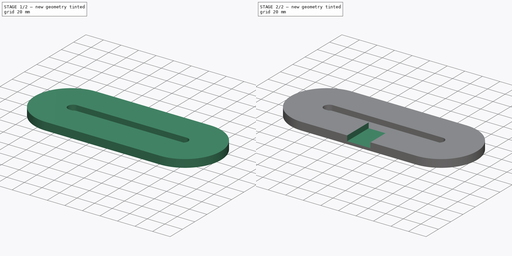
[diagram: build sequence overview — one tinted view per stage of 2, left to right]
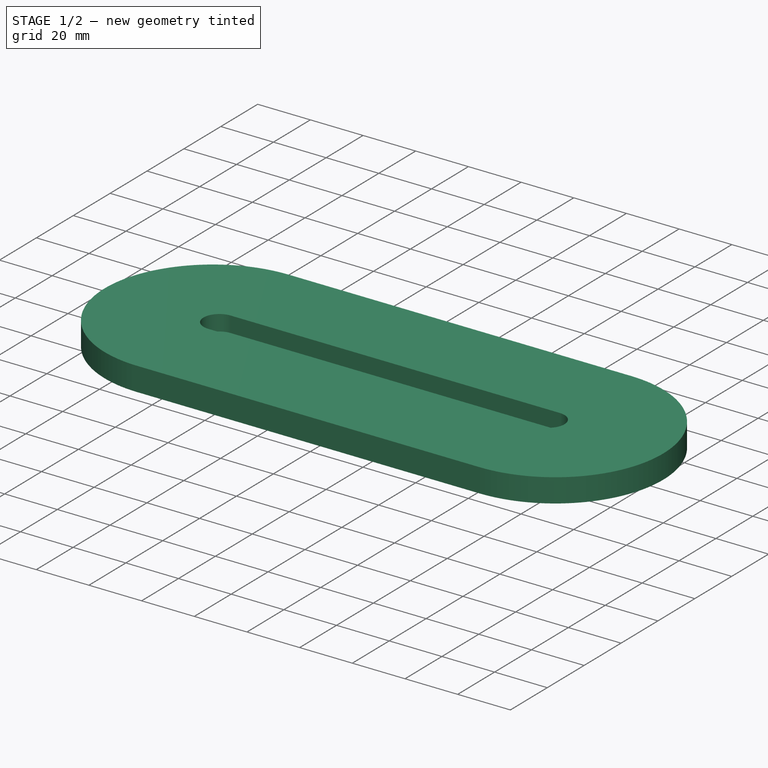
[diagram: stage 1 of 2 — iso view after this stage's code; geometry added in this stage tinted green]
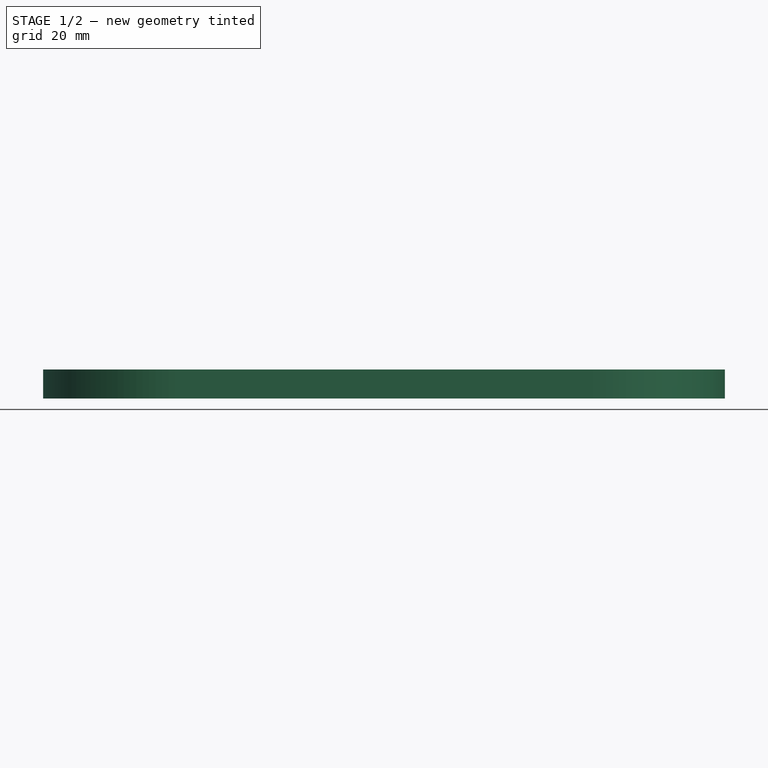
[diagram: stage 1 of 2 — front view after this stage's code; geometry added in this stage tinted green]
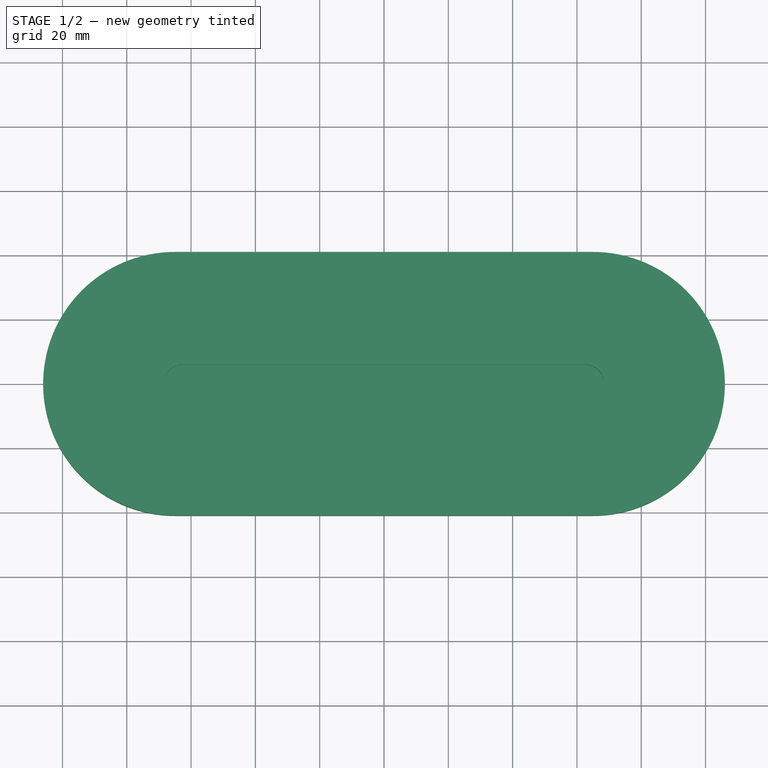
[diagram: stage 1 of 2 — top view after this stage's code; geometry added in this stage tinted green]
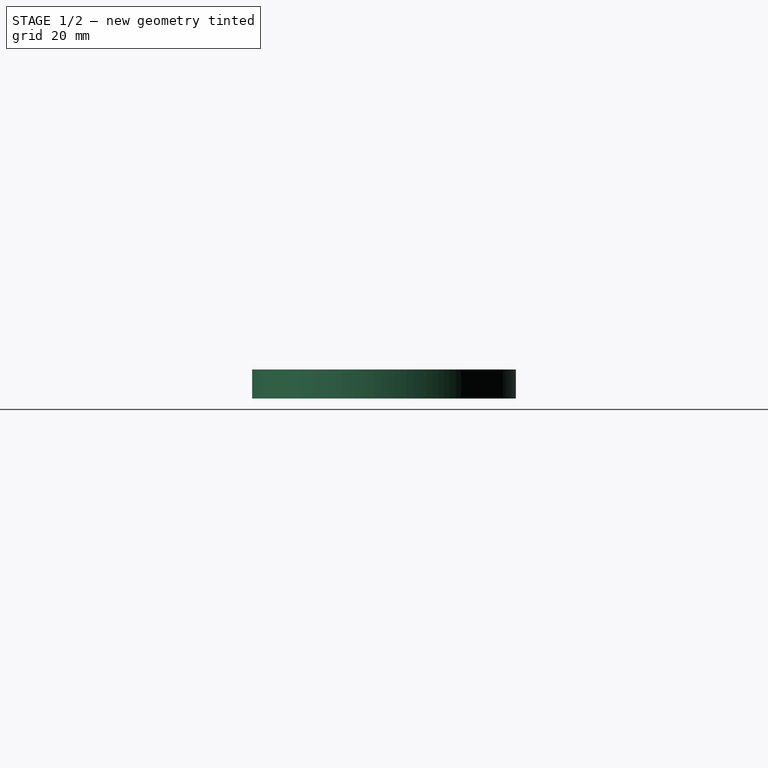
[diagram: stage 1 of 2 — right view after this stage's code; geometry added in this stage tinted green]
FCSTD DOCUMENT  (FreeCAD 0.17R13541 (Git))
Label: Acry-Base-18-WiFi-base-slots
License: All rights reserved
LicenseURL: http://en.wikipedia.org/wiki/All_rights_reserved
objects: Sketcher::SketchObject×3, PartDesign::Pocket×2, PartDesign::Pad×1, PartDesign::Body×1, App::Part×1
note: 10 computed .brp shape members not serialized (recipe doc carries the construction recipe); baked Part::Feature solids carry a one-line shape summary decoded from their .brp

FEATURE [Sketcher::SketchObject] Sketch
  MapMode = 5
  Support = -> [XY_Plane001]
  sketch-geometry (5):
    g0: ArcOfCircle CenterX=-65 CenterY=0 CenterZ=0 NormalX=0 NormalY=0 NormalZ=1 AngleXU=0 Radius=41 StartAngle=1.5708 EndAngle=4.71239
    g1: ArcOfCircle CenterX=65 CenterY=0 CenterZ=0 NormalX=0 NormalY=0 NormalZ=1 AngleXU=0 Radius=41 StartAngle=4.71239 EndAngle=7.85398
    g2: LineSegment StartX=-65 StartY=-41 StartZ=0 EndX=65 EndY=-41 EndZ=0
    g3: LineSegment StartX=-65 StartY=41 StartZ=0 EndX=65 EndY=41 EndZ=0
    g4: GeomPoint X=0 Y=-41 Z=0
  constraints (12):
    c: Tangent(g0,g3) = 1.5708
    c: Tangent(g0,g2) = -1.5708
    c: Tangent(g2,g1) = -1.5708
    c: Tangent(g3,g1) = 1.5708
    c: Horizontal(g2)
    c: Equal(g0,g1)
    c: Distance(g3) = 130
    c: Distance(g1,g1) = 82
    c: PointOnObject(g4,g2)
    c: PointOnObject(g4,g-2)
    c: Symmetric(g1,g0,g4)
    c: PointOnObject(g0,g-1)
FEATURE [PartDesign::Pad] Pad
  Length = 9
  Length2 = 100
  Profile = -> Sketch
  Type = 0
FEATURE [Sketcher::SketchObject] Sketch001
  MapMode = 5
  Placement = pos=(0,0,9) rot=(0,0,1;0rad)
  Support = -> [Pad]
  sketch-geometry (5):
    g0: ArcOfCircle CenterX=-62.5 CenterY=0 CenterZ=0 NormalX=0 NormalY=0 NormalZ=1 AngleXU=0 Radius=6 StartAngle=1.5708 EndAngle=4.71239
    g1: ArcOfCircle CenterX=62.5 CenterY=-1e-12 CenterZ=0 NormalX=0 NormalY=0 NormalZ=1 AngleXU=0 Radius=6 StartAngle=4.71239 EndAngle=7.85398
    g2: LineSegment StartX=-62.5 StartY=-6 StartZ=0 EndX=62.5 EndY=-6 EndZ=0
    g3: LineSegment StartX=-62.5 StartY=6 StartZ=0 EndX=62.5 EndY=6 EndZ=0
    g4: GeomPoint X=0 Y=6 Z=0
  constraints (12):
    c: Tangent(g0,g3) = 1.5708
    c: Tangent(g0,g2) = -1.5708
    c: Tangent(g2,g1) = -1.5708
    c: Tangent(g3,g1) = 1.5708
    c: Horizontal(g2)
    c: Equal(g0,g1)
    c: PointOnObject(g4,g3)
    c: Symmetric(g1,g0,g4)
    c: PointOnObject(g4,g-2)
    c: Distance(g2) = 125
    c: Distance(g1,g1) = 12
    c: PointOnObject(g0,g-1)
FEATURE [PartDesign::Pocket] Pocket
  BaseFeature = -> Pad
  Length = 6
  Length2 = 100
  Profile = -> Sketch001
  Type = 0
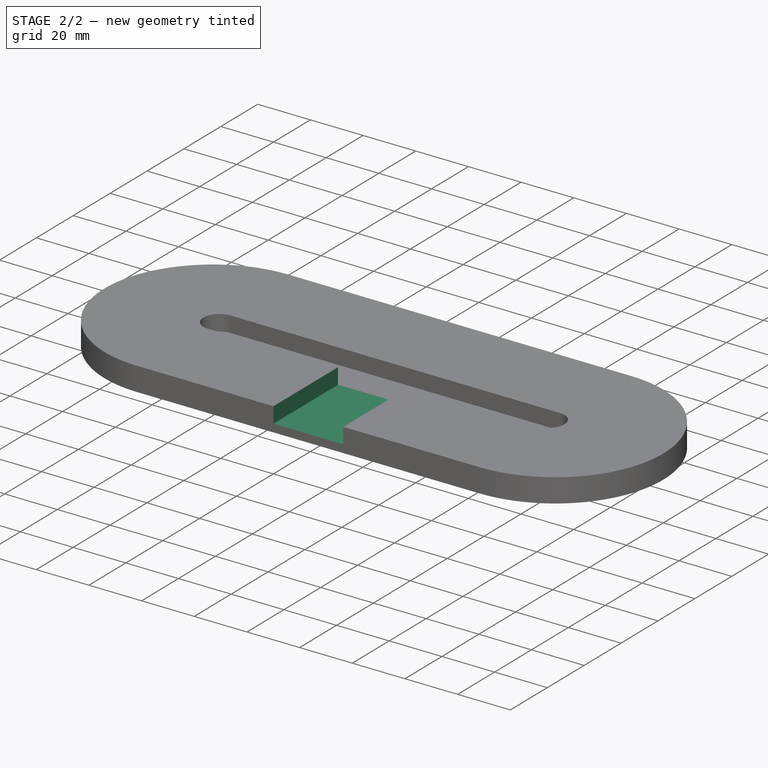
[diagram: stage 2 of 2 — iso view after this stage's code; geometry added in this stage tinted green]
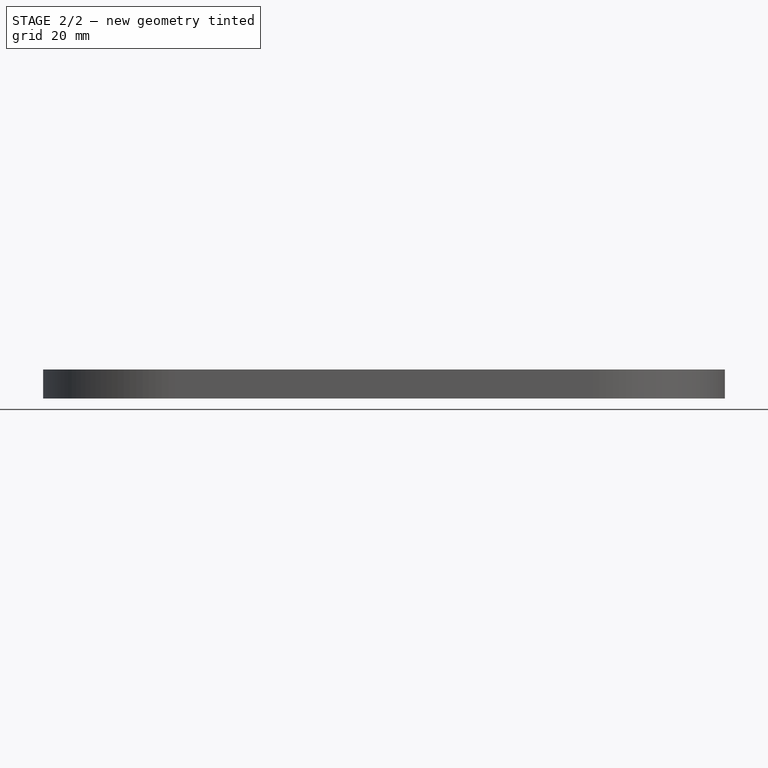
[diagram: stage 2 of 2 — front view after this stage's code; geometry added in this stage tinted green]
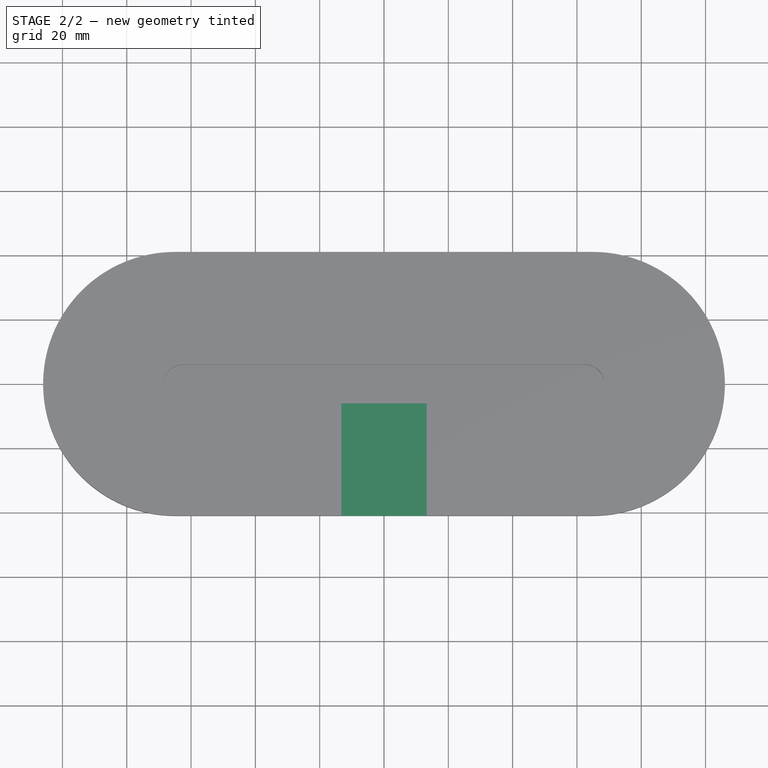
[diagram: stage 2 of 2 — top view after this stage's code; geometry added in this stage tinted green]
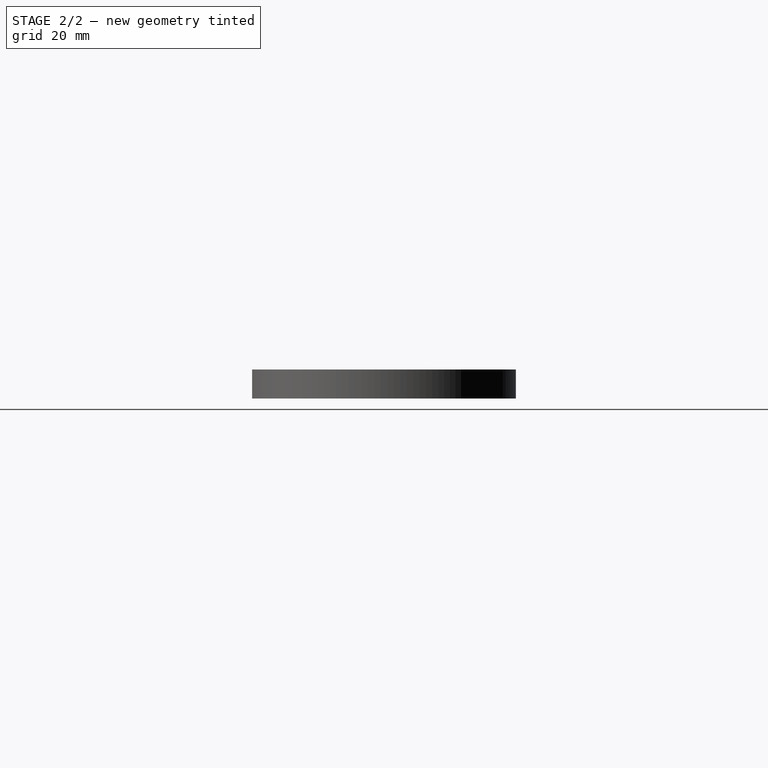
[diagram: stage 2 of 2 — right view after this stage's code; geometry added in this stage tinted green]
FEATURE [Sketcher::SketchObject] Sketch002
  ExternalGeometry = -> [Pocket]
  MapMode = 5
  Placement = pos=(0,0,9) rot=(0,0,1;0rad)
  Support = -> [Pocket]
  sketch-geometry (5):
    g0: LineSegment StartX=-13.25 StartY=-6 StartZ=0 EndX=13.25 EndY=-6 EndZ=0
    g1: LineSegment StartX=13.25 StartY=-6 StartZ=0 EndX=13.25 EndY=-41 EndZ=0
    g2: LineSegment StartX=13.25 StartY=-41 StartZ=0 EndX=-13.25 EndY=-41 EndZ=0
    g3: LineSegment StartX=-13.25 StartY=-41 StartZ=0 EndX=-13.25 EndY=-6 EndZ=0
    g4: GeomPoint X=0 Y=-6 Z=0
  constraints (14):
    c: Coincident(g0,g1)
    c: Coincident(g1,g2)
    c: Coincident(g2,g3)
    c: Coincident(g3,g0)
    c: Horizontal(g0)
    c: Horizontal(g2)
    c: Vertical(g1)
    c: Vertical(g3)
    c: Distance(g1) = 35
    c: PointOnObject(g2,g-3)
    c: Distance(g0) = 26.5
    c: PointOnObject(g4,g0)
    c: Symmetric(g0,g0,g4)
    c: PointOnObject(g4,g-2)
FEATURE [PartDesign::Pocket] Pocket001
  BaseFeature = -> Pocket
  Length = 6
  Length2 = 100
  Profile = -> Sketch002
  Type = 0
FEATURE [PartDesign::Body] Body
  Group = -> [Sketch,Pad,Sketch001,Pocket,Sketch002,Pocket001]
  Origin = -> Origin001
  Tip = -> Pocket001
FEATURE [App::Part] Part
  Group = -> [Body]
  License = CC BY 3.0
  LicenseURL = http://creativecommons.org/licenses/by/3.0/
  Origin = -> Origin
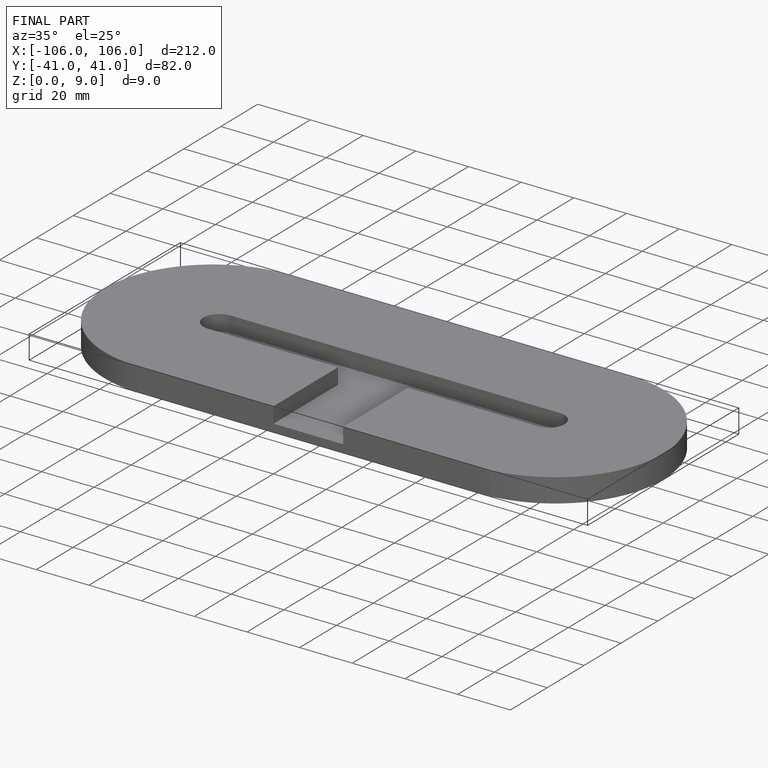
[diagram: finished part — iso view with bounding-box wireframe]
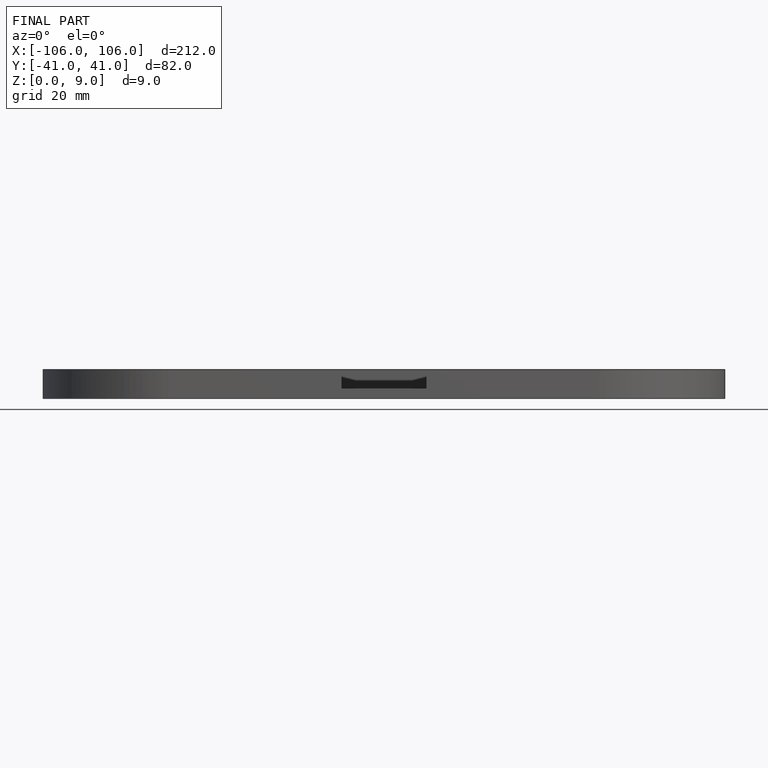
[diagram: finished part — front view with bounding-box wireframe]
